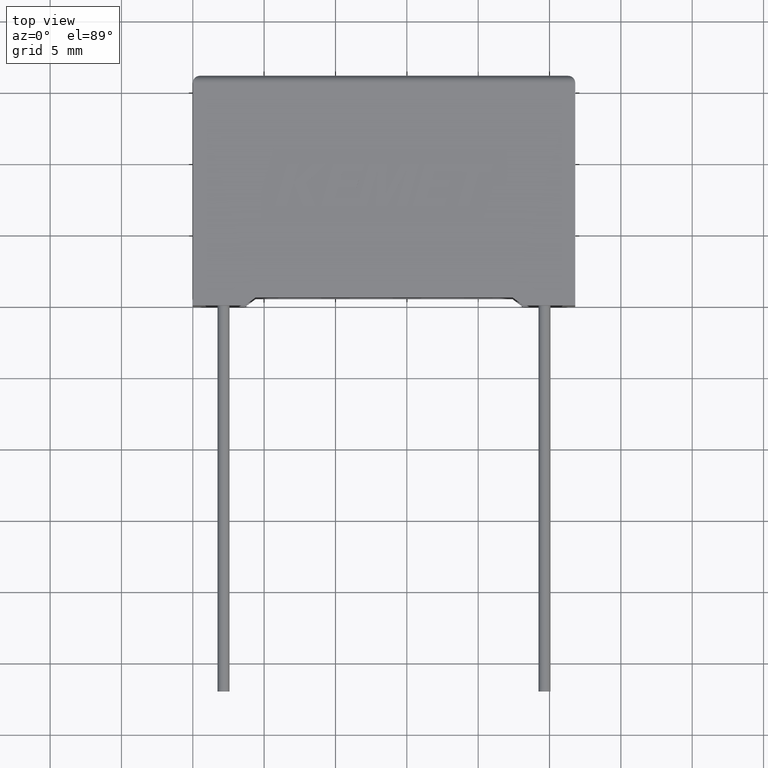
[diagram: clean part render]
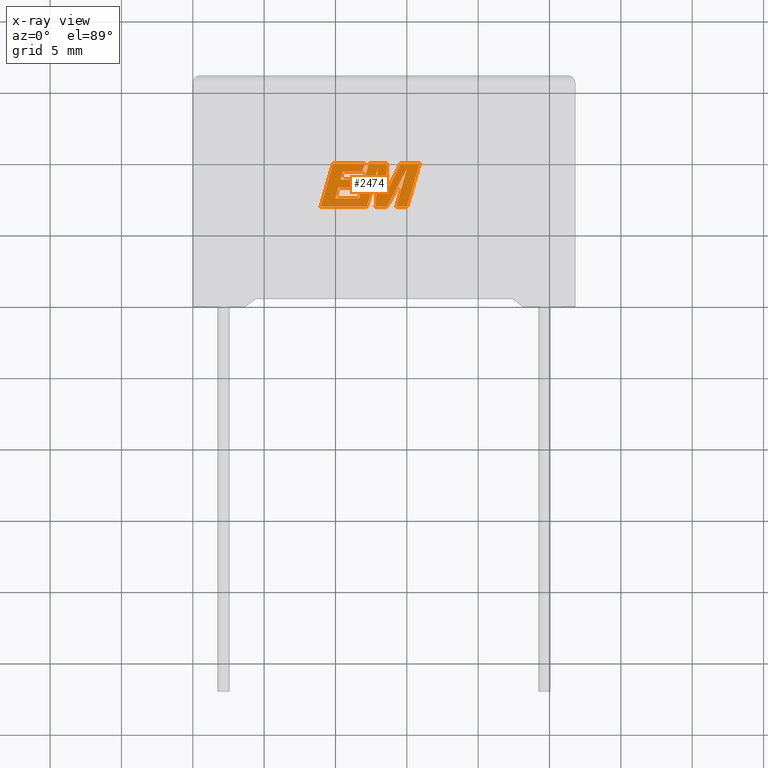
[diagram: x-ray — body ghosted, one internal face saturated and labeled with its STEP entity id]
A machine part, top view, then the same camera in x-ray: the body is ghosted and one INTERNAL B-rep face — a face not visible from any outside direction — is saturated and labeled: STEP entity #2474.
In plain terms, the highlighted planar face has unit normal (0, 0, -1).
Its self-contained STEP definition (entity closure, byte-faithful):
#51 = EDGE_CURVE ( 'NONE', #2548, #2558, #1902, .T. ) ;
#55 = ORIENTED_EDGE ( 'NONE', *, *, #2749, .F. ) ;
#58 = CARTESIAN_POINT ( 'NONE',  ( 12.19501884341827846, 6.927829999999906896, 7.200000000000000178 ) ) ;
#62 = CARTESIAN_POINT ( 'NONE',  ( 14.25927221365804698, 6.927829999999906896, 7.200000000000000178 ) ) ;
#64 = EDGE_CURVE ( 'NONE', #2182, #2664, #2554, .T. ) ;
#75 = CARTESIAN_POINT ( 'NONE',  ( 14.25927221365804698, 6.927829999999906896, 7.200000000000000178 ) ) ;
#121 = VECTOR ( 'NONE', #835, 1000.000000000000000 ) ;
#133 = VECTOR ( 'NONE', #2637, 1000.000000000000114 ) ;
#147 = LINE ( 'NONE', #2041, #121 ) ;
#160 = CARTESIAN_POINT ( 'NONE',  ( 12.34199675988504730, 9.929655146294752655, 7.200000000000000178 ) ) ;
#173 = DIRECTION ( 'NONE',  ( 0.000000000000000000, 0.000000000000000000, -1.000000000000000000 ) ) ;
#177 = LINE ( 'NONE', #1106, #2855 ) ;
#190 = EDGE_CURVE ( 'NONE', #850, #393, #2853, .T. ) ;
#195 = CARTESIAN_POINT ( 'NONE',  ( 12.81255791745697081, 6.927829999999906896, 7.200000000000000178 ) ) ;
#206 = LINE ( 'NONE', #896, #234 ) ;
#210 = DIRECTION ( 'NONE',  ( -1.000000000000000000, 0.000000000000000000, 0.000000000000000000 ) ) ;
#234 = VECTOR ( 'NONE', #1869, 999.9999999999998863 ) ;
#245 = CARTESIAN_POINT ( 'NONE',  ( 9.979269517209649720, 7.498929054996248844, 7.200000000000000178 ) ) ;
#265 = AXIS2_PLACEMENT_3D ( 'NONE', #2073, #173, #635 ) ;
#282 = CARTESIAN_POINT ( 'NONE',  ( 12.19501884341827846, 6.927829999999906896, 7.200000000000000178 ) ) ;
#293 = LINE ( 'NONE', #530, #133 ) ;
#345 = EDGE_CURVE ( 'NONE', #1399, #746, #2367, .T. ) ;
#346 = ORIENTED_EDGE ( 'NONE', *, *, #64, .F. ) ;
#355 = EDGE_CURVE ( 'NONE', #357, #2621, #919, .T. ) ;
#357 = VERTEX_POINT ( 'NONE', #75 ) ;
#361 = CARTESIAN_POINT ( 'NONE',  ( 12.04258276915566839, 9.929655146294752655, 7.200000000000000178 ) ) ;
#372 = DIRECTION ( 'NONE',  ( 0.2793947940878294123, 0.9601763114327593884, 0.000000000000000000 ) ) ;
#385 = DIRECTION ( 'NONE',  ( -0.05596501978069368805, -0.9984327301130239141, 0.000000000000000000 ) ) ;
#393 = VERTEX_POINT ( 'NONE', #1604 ) ;
#407 = VECTOR ( 'NONE', #2368, 1000.000000000000000 ) ;
#442 = LINE ( 'NONE', #1382, #1480 ) ;
#492 = ORIENTED_EDGE ( 'NONE', *, *, #355, .F. ) ;
#514 = VECTOR ( 'NONE', #890, 1000.000000000000227 ) ;
#515 = ORIENTED_EDGE ( 'NONE', *, *, #1198, .F. ) ;
#527 = CARTESIAN_POINT ( 'NONE',  ( 11.48008168937758633, 8.244999644015067020, 7.200000000000000178 ) ) ;
#530 = CARTESIAN_POINT ( 'NONE',  ( 13.61281765606143246, 6.927829999999906896, 7.200000000000000178 ) ) ;
#533 = EDGE_CURVE ( 'NONE', #2558, #828, #293, .T. ) ;
#569 = ORIENTED_EDGE ( 'NONE', *, *, #1140, .F. ) ;
#619 = FACE_OUTER_BOUND ( 'NONE', #1407, .T. ) ;
#635 = DIRECTION ( 'NONE',  ( -1.000000000000000000, 0.000000000000000000, 0.000000000000000000 ) ) ;
#639 = CARTESIAN_POINT ( 'NONE',  ( 11.48008168937758633, 8.244999644015067020, 7.200000000000000178 ) ) ;
#648 = LINE ( 'NONE', #1596, #1330 ) ;
#684 = CARTESIAN_POINT ( 'NONE',  ( 11.63858746193968230, 8.799934140488566925, 7.200000000000000178 ) ) ;
#695 = VERTEX_POINT ( 'NONE', #2578 ) ;
#708 = VERTEX_POINT ( 'NONE', #1378 ) ;
#733 = VECTOR ( 'NONE', #2499, 1000.000000000000114 ) ;
#734 = VERTEX_POINT ( 'NONE', #684 ) ;
#746 = VERTEX_POINT ( 'NONE', #2168 ) ;
#750 = ORIENTED_EDGE ( 'NONE', *, *, #2004, .F. ) ;
#757 = ORIENTED_EDGE ( 'NONE', *, *, #2732, .F. ) ;
#759 = DIRECTION ( 'NONE',  ( 0.2759782365590697228, 0.9611638845408966292, 0.000000000000000000 ) ) ;
#765 = VECTOR ( 'NONE', #925, 1000.000000000000000 ) ;
#828 = VERTEX_POINT ( 'NONE', #1448 ) ;
#835 = DIRECTION ( 'NONE',  ( -1.000000000000000000, 0.000000000000000000, 0.000000000000000000 ) ) ;
#837 = LINE ( 'NONE', #160, #733 ) ;
#850 = VERTEX_POINT ( 'NONE', #1145 ) ;
#868 = VECTOR ( 'NONE', #2079, 1000.000000000000227 ) ;
#870 = EDGE_CURVE ( 'NONE', #3038, #2182, #3018, .T. ) ;
#878 = CARTESIAN_POINT ( 'NONE',  ( 10.35016900896583358, 8.799934140488566925, 7.200000000000000178 ) ) ;
#890 = DIRECTION ( 'NONE',  ( 0.2740217765954066076, 0.9617234872620595842, 0.000000000000000000 ) ) ;
#896 = CARTESIAN_POINT ( 'NONE',  ( 14.56854915550671947, 9.929655146294752655, 7.200000000000000178 ) ) ;
#914 = ORIENTED_EDGE ( 'NONE', *, *, #1687, .F. ) ;
#919 = LINE ( 'NONE', #62, #2896 ) ;
#925 = DIRECTION ( 'NONE',  ( 1.000000000000000000, 0.000000000000000000, 0.000000000000000000 ) ) ;
#955 = VECTOR ( 'NONE', #759, 1000.000000000000227 ) ;
#961 = ORIENTED_EDGE ( 'NONE', *, *, #1645, .F. ) ;
#975 = ORIENTED_EDGE ( 'NONE', *, *, #1986, .F. ) ;
#989 = ORIENTED_EDGE ( 'NONE', *, *, #1520, .F. ) ;
#1004 = VECTOR ( 'NONE', #1570, 1000.000000000000000 ) ;
#1009 = DIRECTION ( 'NONE',  ( 1.000000000000000000, 0.000000000000000000, 0.000000000000000000 ) ) ;
#1039 = VERTEX_POINT ( 'NONE', #527 ) ;
#1056 = ORIENTED_EDGE ( 'NONE', *, *, #2830, .F. ) ;
#1058 = DIRECTION ( 'NONE',  ( 1.000000000000000000, 0.000000000000000000, 0.000000000000000000 ) ) ;
#1084 = ORIENTED_EDGE ( 'NONE', *, *, #2120, .F. ) ;
#1087 = ORIENTED_EDGE ( 'NONE', *, *, #2501, .F. ) ;
#1106 = CARTESIAN_POINT ( 'NONE',  ( 11.63858746193968230, 8.799934140488566925, 7.200000000000000178 ) ) ;
#1121 = CARTESIAN_POINT ( 'NONE',  ( 13.50492627752647579, 7.785112693060707301, 7.200000000000000178 ) ) ;
#1140 = EDGE_CURVE ( 'NONE', #1039, #734, #2258, .T. ) ;
#1143 = DIRECTION ( 'NONE',  ( 1.000000000000000000, 0.000000000000000000, 0.000000000000000000 ) ) ;
#1145 = CARTESIAN_POINT ( 'NONE',  ( 11.88029826862837446, 9.358273143074805844, 7.200000000000000178 ) ) ;
#1146 = CARTESIAN_POINT ( 'NONE',  ( 15.88512924842837215, 9.929655146294752655, 7.200000000000000178 ) ) ;
#1170 = VECTOR ( 'NONE', #210, 1000.000000000000000 ) ;
#1193 = ORIENTED_EDGE ( 'NONE', *, *, #870, .F. ) ;
#1198 = EDGE_CURVE ( 'NONE', #734, #2882, #177, .T. ) ;
#1205 = CARTESIAN_POINT ( 'NONE',  ( 10.51263605673751833, 9.358273143074805844, 7.200000000000000178 ) ) ;
#1223 = DIRECTION ( 'NONE',  ( 0.2732148821746286371, 0.9619530280415482526, 0.000000000000000000 ) ) ;
#1233 = VERTEX_POINT ( 'NONE', #3016 ) ;
#1238 = ORIENTED_EDGE ( 'NONE', *, *, #51, .F. ) ;
#1269 = VECTOR ( 'NONE', #1143, 1000.000000000000000 ) ;
#1311 = EDGE_CURVE ( 'NONE', #828, #357, #442, .T. ) ;
#1330 = VECTOR ( 'NONE', #1058, 1000.000000000000000 ) ;
#1370 = ORIENTED_EDGE ( 'NONE', *, *, #1395, .F. ) ;
#1378 = CARTESIAN_POINT ( 'NONE',  ( 12.96235618644490373, 9.600276025354885334, 7.200000000000000178 ) ) ;
#1382 = CARTESIAN_POINT ( 'NONE',  ( 15.03040653937304683, 9.613145606098944640, 7.200000000000000178 ) ) ;
#1388 = LINE ( 'NONE', #245, #514 ) ;
#1395 = EDGE_CURVE ( 'NONE', #2701, #2540, #206, .T. ) ;
#1399 = VERTEX_POINT ( 'NONE', #2552 ) ;
#1405 = LINE ( 'NONE', #3034, #1550 ) ;
#1407 = EDGE_LOOP ( 'NONE', ( #55, #975, #492, #1711, #1627, #1238, #2202, #757, #346, #1193, #1087, #1927, #989, #1056, #515, #569, #914, #750, #1084, #961, #1413, #1594, #1370 ) ) ;
#1411 = VERTEX_POINT ( 'NONE', #1205 ) ;
#1413 = ORIENTED_EDGE ( 'NONE', *, *, #345, .F. ) ;
#1445 = CARTESIAN_POINT ( 'NONE',  ( 9.824934949208618207, 9.929655146294752655, 7.200000000000000178 ) ) ;
#1448 = CARTESIAN_POINT ( 'NONE',  ( 15.03040653937304683, 9.613145606098944640, 7.200000000000000178 ) ) ;
#1460 = CARTESIAN_POINT ( 'NONE',  ( 11.64331543556821558, 7.498929054996248844, 7.200000000000000178 ) ) ;
#1480 = VECTOR ( 'NONE', #2348, 1000.000000000000227 ) ;
#1505 = LINE ( 'NONE', #1460, #1798 ) ;
#1520 = EDGE_CURVE ( 'NONE', #1411, #850, #2183, .T. ) ;
#1550 = VECTOR ( 'NONE', #2355, 1000.000000000000000 ) ;
#1559 = LINE ( 'NONE', #2489, #2084 ) ;
#1570 = DIRECTION ( 'NONE',  ( -1.000000000000000000, 0.000000000000000000, 0.000000000000000000 ) ) ;
#1594 = ORIENTED_EDGE ( 'NONE', *, *, #2101, .F. ) ;
#1596 = CARTESIAN_POINT ( 'NONE',  ( 10.19184578364829008, 8.244999644015067020, 7.200000000000000178 ) ) ;
#1604 = CARTESIAN_POINT ( 'NONE',  ( 12.04258276915566839, 9.929655146294752655, 7.200000000000000178 ) ) ;
#1627 = ORIENTED_EDGE ( 'NONE', *, *, #533, .F. ) ;
#1630 = CARTESIAN_POINT ( 'NONE',  ( 15.02208238501568971, 6.927829999999906896, 7.200000000000000178 ) ) ;
#1645 = EDGE_CURVE ( 'NONE', #746, #1233, #837, .T. ) ;
#1671 = VECTOR ( 'NONE', #2516, 1000.000000000000114 ) ;
#1687 = EDGE_CURVE ( 'NONE', #695, #1039, #648, .T. ) ;
#1711 = ORIENTED_EDGE ( 'NONE', *, *, #1311, .F. ) ;
#1732 = CARTESIAN_POINT ( 'NONE',  ( 13.50492627752647579, 7.785112693060707301, 7.200000000000000178 ) ) ;
#1754 = LINE ( 'NONE', #282, #955 ) ;
#1798 = VECTOR ( 'NONE', #1937, 1000.000000000000000 ) ;
#1805 = PLANE ( 'NONE',  #265 ) ;
#1869 = DIRECTION ( 'NONE',  ( -0.4443210308329519354, -0.8958676361826802825, 0.000000000000000000 ) ) ;
#1902 = LINE ( 'NONE', #195, #1269 ) ;
#1907 = LINE ( 'NONE', #1732, #407 ) ;
#1927 = ORIENTED_EDGE ( 'NONE', *, *, #190, .F. ) ;
#1937 = DIRECTION ( 'NONE',  ( -1.000000000000000000, 0.000000000000000000, 0.000000000000000000 ) ) ;
#1975 = CARTESIAN_POINT ( 'NONE',  ( 11.66070305823056330, 6.927829999999906896, 7.200000000000000178 ) ) ;
#1986 = EDGE_CURVE ( 'NONE', #2621, #2310, #1405, .T. ) ;
#2004 = EDGE_CURVE ( 'NONE', #2404, #695, #1388, .T. ) ;
#2041 = CARTESIAN_POINT ( 'NONE',  ( 15.88512924842837215, 9.929655146294752655, 7.200000000000000178 ) ) ;
#2067 = CARTESIAN_POINT ( 'NONE',  ( 13.62036788893125916, 9.929655146294752655, 7.200000000000000178 ) ) ;
#2073 = CARTESIAN_POINT ( 'NONE',  ( -0.3258222201975285448, -2.788102143479581407, 7.200000000000000178 ) ) ;
#2079 = DIRECTION ( 'NONE',  ( -0.2765379750249962743, -0.9610029908221277006, 0.000000000000000000 ) ) ;
#2084 = VECTOR ( 'NONE', #385, 1000.000000000000114 ) ;
#2101 = EDGE_CURVE ( 'NONE', #2540, #1399, #1907, .T. ) ;
#2120 = EDGE_CURVE ( 'NONE', #1233, #2404, #1505, .T. ) ;
#2168 = CARTESIAN_POINT ( 'NONE',  ( 12.34199675988504730, 9.929655146294752655, 7.200000000000000178 ) ) ;
#2182 = VERTEX_POINT ( 'NONE', #2386 ) ;
#2183 = LINE ( 'NONE', #2685, #2451 ) ;
#2202 = ORIENTED_EDGE ( 'NONE', *, *, #2269, .F. ) ;
#2230 = VECTOR ( 'NONE', #372, 1000.000000000000114 ) ;
#2239 = CARTESIAN_POINT ( 'NONE',  ( 13.61281765606143246, 6.927829999999906896, 7.200000000000000178 ) ) ;
#2258 = LINE ( 'NONE', #639, #1671 ) ;
#2266 = DIRECTION ( 'NONE',  ( -1.000000000000000000, 0.000000000000000000, 0.000000000000000000 ) ) ;
#2269 = EDGE_CURVE ( 'NONE', #708, #2548, #1559, .T. ) ;
#2310 = VERTEX_POINT ( 'NONE', #1146 ) ;
#2348 = DIRECTION ( 'NONE',  ( -0.2760118818968580467, -0.9611542233438683525, 0.000000000000000000 ) ) ;
#2355 = DIRECTION ( 'NONE',  ( 0.2763139702539113562, 0.9610674221107073922, 0.000000000000000000 ) ) ;
#2367 = LINE ( 'NONE', #2067, #1170 ) ;
#2368 = DIRECTION ( 'NONE',  ( 0.05375259206908576670, 0.9985542843760946141, 0.000000000000000000 ) ) ;
#2385 = DIRECTION ( 'NONE',  ( 1.000000000000000000, 0.000000000000000000, 0.000000000000000000 ) ) ;
#2386 = CARTESIAN_POINT ( 'NONE',  ( 8.961130512319890329, 6.927829999999906008, 7.200000000000000178 ) ) ;
#2404 = VERTEX_POINT ( 'NONE', #2606 ) ;
#2443 = VECTOR ( 'NONE', #1223, 1000.000000000000114 ) ;
#2451 = VECTOR ( 'NONE', #1009, 1000.000000000000000 ) ;
#2474 = ADVANCED_FACE ( 'NONE', ( #619 ), #1805, .T. ) ;
#2489 = CARTESIAN_POINT ( 'NONE',  ( 12.96235618644490373, 9.600276025354885334, 7.200000000000000178 ) ) ;
#2499 = DIRECTION ( 'NONE',  ( -0.2762517575166416051, -0.9610853065513833560, 0.000000000000000000 ) ) ;
#2501 = EDGE_CURVE ( 'NONE', #393, #3038, #2733, .T. ) ;
#2516 = DIRECTION ( 'NONE',  ( 0.2746459304916892830, 0.9615454294334481178, 0.000000000000000000 ) ) ;
#2540 = VERTEX_POINT ( 'NONE', #1121 ) ;
#2548 = VERTEX_POINT ( 'NONE', #2996 ) ;
#2552 = CARTESIAN_POINT ( 'NONE',  ( 13.62036788893125916, 9.929655146294752655, 7.200000000000000178 ) ) ;
#2554 = LINE ( 'NONE', #1975, #765 ) ;
#2558 = VERTEX_POINT ( 'NONE', #2239 ) ;
#2578 = CARTESIAN_POINT ( 'NONE',  ( 10.19184578364829008, 8.244999644015067020, 7.200000000000000178 ) ) ;
#2606 = CARTESIAN_POINT ( 'NONE',  ( 9.979269517209649720, 7.498929054996248844, 7.200000000000000178 ) ) ;
#2617 = CARTESIAN_POINT ( 'NONE',  ( 11.88029826862837446, 9.358273143074805844, 7.200000000000000178 ) ) ;
#2621 = VERTEX_POINT ( 'NONE', #1630 ) ;
#2637 = DIRECTION ( 'NONE',  ( 0.4668459304955080991, 0.8843386665637680277, 0.000000000000000000 ) ) ;
#2664 = VERTEX_POINT ( 'NONE', #58 ) ;
#2685 = CARTESIAN_POINT ( 'NONE',  ( 10.51263605673751833, 9.358273143074805844, 7.200000000000000178 ) ) ;
#2699 = CARTESIAN_POINT ( 'NONE',  ( 10.35016900896583358, 8.799934140488566925, 7.200000000000000178 ) ) ;
#2701 = VERTEX_POINT ( 'NONE', #2898 ) ;
#2732 = EDGE_CURVE ( 'NONE', #2664, #708, #1754, .T. ) ;
#2733 = LINE ( 'NONE', #361, #1004 ) ;
#2749 = EDGE_CURVE ( 'NONE', #2310, #2701, #147, .T. ) ;
#2830 = EDGE_CURVE ( 'NONE', #2882, #1411, #2992, .T. ) ;
#2853 = LINE ( 'NONE', #2617, #2443 ) ;
#2855 = VECTOR ( 'NONE', #2266, 1000.000000000000000 ) ;
#2882 = VERTEX_POINT ( 'NONE', #878 ) ;
#2896 = VECTOR ( 'NONE', #2385, 1000.000000000000000 ) ;
#2898 = CARTESIAN_POINT ( 'NONE',  ( 14.56854915550671947, 9.929655146294752655, 7.200000000000000178 ) ) ;
#2944 = CARTESIAN_POINT ( 'NONE',  ( 9.824934949208618207, 9.929655146294752655, 7.200000000000000178 ) ) ;
#2992 = LINE ( 'NONE', #2699, #2230 ) ;
#2996 = CARTESIAN_POINT ( 'NONE',  ( 12.81255791745697081, 6.927829999999906896, 7.200000000000000178 ) ) ;
#3016 = CARTESIAN_POINT ( 'NONE',  ( 11.64331543556821558, 7.498929054996248844, 7.200000000000000178 ) ) ;
#3018 = LINE ( 'NONE', #2944, #868 ) ;
#3034 = CARTESIAN_POINT ( 'NONE',  ( 15.02208238501568971, 6.927829999999906896, 7.200000000000000178 ) ) ;
#3038 = VERTEX_POINT ( 'NONE', #1445 ) ;